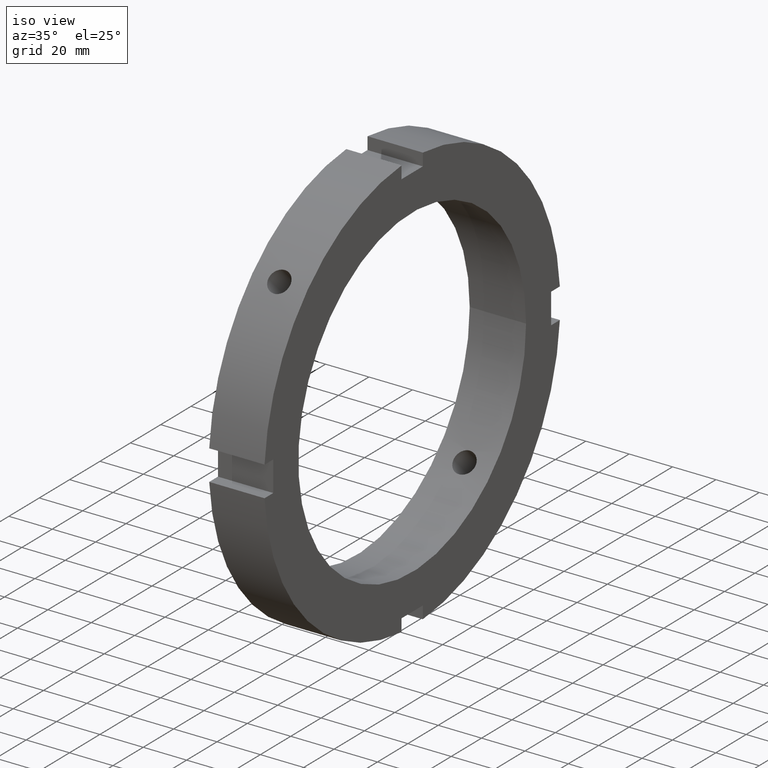
[diagram: clean part render]
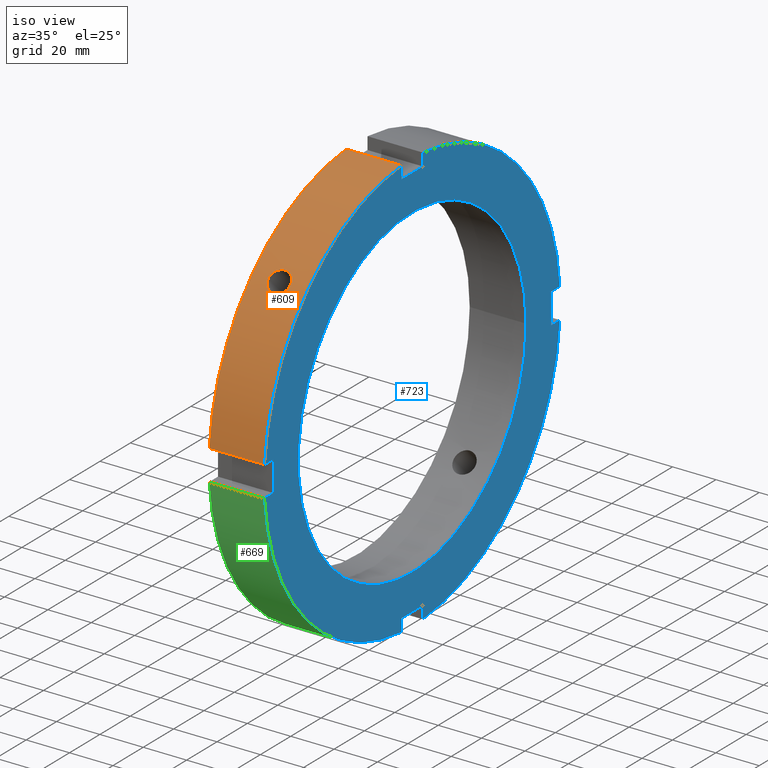
[diagram: same view with three faces highlighted in distinct colors, each labeled with its STEP entity id]
A machine part, iso view with three faces highlighted in distinct colors.
Their STEP definitions:

[orange] entity #609 — the highlighted cylindrical surface (partial cylindrical patch) has radius 97.5 mm, axis along (1, 0, 0).
#73=CARTESIAN_POINT('',(12.999999999999982,-72.423272696281785,65.277251565610555));
#74=VERTEX_POINT('',#73);
#75=CARTESIAN_POINT('',(12.999999999999980,-72.423272696281785,65.277251565610555));
#76=CARTESIAN_POINT('',(12.365412027941963,-72.423272696281785,65.277251565610555));
#77=CARTESIAN_POINT('',(11.688603400953237,-72.338417222234256,65.371783182393017));
#78=CARTESIAN_POINT('',(10.443682262266378,-71.991233554627982,65.753927136479959));
#79=CARTESIAN_POINT('',(9.875560113950325,-71.728658046856197,66.041283308527085));
#80=CARTESIAN_POINT('',(8.978418864771813,-71.117546471856031,66.698921055479516));
#81=CARTESIAN_POINT('',(8.589558362758387,-70.728206481584252,67.113027182846878));
#82=CARTESIAN_POINT('',(8.073845785067270,-69.865377724148303,68.010783006866120));
#83=CARTESIAN_POINT('',(7.946999999999983,-69.391632514559831,68.494189816816942));
#84=CARTESIAN_POINT('',(7.946999999999983,-68.494189816816927,69.391632514559831));
#85=CARTESIAN_POINT('',(8.073845785067263,-68.010783006866106,69.865377724148317));
#86=CARTESIAN_POINT('',(8.589558362758380,-67.113027182846878,70.728206481584280));
#87=CARTESIAN_POINT('',(8.978418864771809,-66.698921055479516,71.117546471856045));
#88=CARTESIAN_POINT('',(9.875560113950325,-66.041283308527071,71.728658046856197));
#89=CARTESIAN_POINT('',(10.443682262266375,-65.753927136479945,71.991233554627996));
#90=CARTESIAN_POINT('',(11.688603400953232,-65.371783182393003,72.338417222234270));
#91=CARTESIAN_POINT('',(12.365412027941964,-65.277251565610555,72.423272696281785));
#92=CARTESIAN_POINT('',(13.634587972058000,-65.277251565610555,72.423272696281785));
#93=CARTESIAN_POINT('',(14.311396599046732,-65.371783182393003,72.338417222234270));
#94=CARTESIAN_POINT('',(15.556317737733591,-65.753927136479945,71.991233554627996));
#95=CARTESIAN_POINT('',(16.124439886049640,-66.041283308527085,71.728658046856197));
#96=CARTESIAN_POINT('',(17.021581135228153,-66.698921055479502,71.117546471856045));
#97=CARTESIAN_POINT('',(17.410441637241579,-67.113027182846878,70.728206481584280));
#98=CARTESIAN_POINT('',(17.926154214932701,-68.010783006866106,69.865377724148317));
#99=CARTESIAN_POINT('',(18.052999999999983,-68.494189816816927,69.391632514559831));
#100=CARTESIAN_POINT('',(18.052999999999983,-69.391632514559831,68.494189816816942));
#101=CARTESIAN_POINT('',(17.926154214932698,-69.865377724148303,68.010783006866120));
#102=CARTESIAN_POINT('',(17.410441637241579,-70.728206481584266,67.113027182846892));
#103=CARTESIAN_POINT('',(17.021581135228153,-71.117546471856031,66.698921055479531));
#104=CARTESIAN_POINT('',(16.124439886049643,-71.728658046856197,66.041283308527085));
#105=CARTESIAN_POINT('',(15.556317737733590,-71.991233554627982,65.753927136479959));
#106=CARTESIAN_POINT('',(14.311396599046729,-72.338417222234256,65.371783182393017));
#107=CARTESIAN_POINT('',(13.634587972058004,-72.423272696281785,65.277251565610555));
#108=CARTESIAN_POINT('',(12.999999999999986,-72.423272696281785,65.277251565610555));
#109=B_SPLINE_CURVE_WITH_KNOTS('',3,(#75,#76,#77,#78,#79,#80,#81,#82,#83,#84,#85,#86,#87,#88,#89,#90,#91,#92,#93,#94,#95,#96,#97,#98,#99,#100,#101,#102,#103,#104,#105,#106,#107,#108),.UNSPECIFIED.,.T.,.U.,(4,2,2,2,2,2,2,2,2,2,2,2,2,2,2,2,4),(0.0,0.190376391617405,0.380752783234810,0.571129128424916,0.761505473615021,0.951881818805126,1.142258163995232,1.332634555612637,1.523010947230042,1.713387338847447,1.903763730464853,2.094140075654958,2.284516420845063,2.474892766035168,2.665269111225274,2.855645502842679,3.046021894460084),.UNSPECIFIED.);
#110=EDGE_CURVE('',#74,#74,#109,.T.);
#353=CARTESIAN_POINT('',(0.499999999999972,-97.248393302923006,7.000000000000006));
#354=VERTEX_POINT('',#353);
#369=CARTESIAN_POINT('',(25.999999999999979,-97.248393302923006,7.000000000000006));
#370=VERTEX_POINT('',#369);
#377=CARTESIAN_POINT('',(0.499999999999972,-97.248393302923006,7.000000000000007));
#378=DIRECTION('',(1.0,0.0,0.0));
#379=VECTOR('',#378,25.500000000000007);
#380=LINE('',#377,#379);
#381=EDGE_CURVE('',#354,#370,#380,.T.);
#493=CARTESIAN_POINT('',(0.499999999999972,-6.999999999999989,97.248393302923006));
#494=VERTEX_POINT('',#493);
#503=CARTESIAN_POINT('',(25.999999999999979,-6.999999999999989,97.248393302923006));
#504=VERTEX_POINT('',#503);
#505=CARTESIAN_POINT('',(25.999999999999979,-6.999999999999991,97.248393302923006));
#506=DIRECTION('',(-1.0,0.0,0.0));
#507=VECTOR('',#506,25.500000000000007);
#508=LINE('',#505,#507);
#509=EDGE_CURVE('',#504,#494,#508,.T.);
#583=CARTESIAN_POINT('',(13.249999999999975,0.0,0.0));
#584=DIRECTION('',(1.0,0.0,0.0));
#585=DIRECTION('',(0.0,1.0,0.0));
#586=AXIS2_PLACEMENT_3D('',#583,#584,#585);
#587=CYLINDRICAL_SURFACE('',#586,97.500000000000000);
#588=ORIENTED_EDGE('',*,*,#381,.T.);
#589=CARTESIAN_POINT('',(25.999999999999979,0.0,0.0));
#590=DIRECTION('',(1.0,0.0,0.0));
#591=DIRECTION('',(0.0,1.0,0.0));
#592=AXIS2_PLACEMENT_3D('',#589,#590,#591);
#593=CIRCLE('',#592,97.500000000000000);
#594=EDGE_CURVE('',#504,#370,#593,.T.);
#595=ORIENTED_EDGE('',*,*,#594,.F.);
#596=ORIENTED_EDGE('',*,*,#509,.T.);
#597=CARTESIAN_POINT('',(0.499999999999972,0.0,0.0));
#598=DIRECTION('',(1.0,0.0,0.0));
#599=DIRECTION('',(0.0,1.0,0.0));
#600=AXIS2_PLACEMENT_3D('',#597,#598,#599);
#601=CIRCLE('',#600,97.500000000000000);
#602=EDGE_CURVE('',#494,#354,#601,.T.);
#603=ORIENTED_EDGE('',*,*,#602,.T.);
#604=EDGE_LOOP('',(#588,#595,#596,#603));
#605=FACE_OUTER_BOUND('',#604,.T.);
#606=ORIENTED_EDGE('',*,*,#110,.T.);
#607=EDGE_LOOP('',(#606));
#608=FACE_BOUND('',#607,.T.);
#609=ADVANCED_FACE('',(#605,#608),#587,.T.);

[blue] entity #723 — the highlighted planar face has unit normal (1, 0, 0).
#259=CARTESIAN_POINT('',(25.999999999999979,-7.000000000000012,-91.500000000000000));
#260=VERTEX_POINT('',#259);
#267=CARTESIAN_POINT('',(25.999999999999979,-7.000000000000012,-97.248393302923006));
#268=VERTEX_POINT('',#267);
#269=CARTESIAN_POINT('',(25.999999999999979,-7.000000000000012,-97.248393302923006));
#270=DIRECTION('',(0.0,0.0,1.0));
#271=VECTOR('',#270,5.748393302923006);
#272=LINE('',#269,#271);
#273=EDGE_CURVE('',#268,#260,#272,.T.);
#299=CARTESIAN_POINT('',(25.999999999999979,6.999999999999977,-97.248393302923006));
#300=VERTEX_POINT('',#299);
#307=CARTESIAN_POINT('',(25.999999999999979,6.999999999999979,-91.500000000000000));
#308=VERTEX_POINT('',#307);
#309=CARTESIAN_POINT('',(25.999999999999979,6.999999999999976,-91.500000000000000));
#310=DIRECTION('',(0.0,0.0,-1.0));
#311=VECTOR('',#310,5.748393302923006);
#312=LINE('',#309,#311);
#313=EDGE_CURVE('',#308,#300,#312,.T.);
#336=CARTESIAN_POINT('',(25.999999999999979,-7.000000000000007,-91.500000000000014));
#337=DIRECTION('',(0.0,1.0,0.0));
#338=VECTOR('',#337,13.999999999999986);
#339=LINE('',#336,#338);
#340=EDGE_CURVE('',#260,#308,#339,.T.);
#361=CARTESIAN_POINT('',(25.999999999999979,-91.500000000000000,7.000000000000006));
#362=VERTEX_POINT('',#361);
#369=CARTESIAN_POINT('',(25.999999999999979,-97.248393302923006,7.000000000000006));
#370=VERTEX_POINT('',#369);
#371=CARTESIAN_POINT('',(25.999999999999979,-97.248393302923020,7.000000000000006));
#372=DIRECTION('',(0.0,1.0,0.0));
#373=VECTOR('',#372,5.748393302923006);
#374=LINE('',#371,#373);
#375=EDGE_CURVE('',#370,#362,#374,.T.);
#401=CARTESIAN_POINT('',(25.999999999999979,-97.248393302923006,-6.999999999999984));
#402=VERTEX_POINT('',#401);
#409=CARTESIAN_POINT('',(25.999999999999979,-91.500000000000000,-6.999999999999984));
#410=VERTEX_POINT('',#409);
#411=CARTESIAN_POINT('',(25.999999999999979,-91.500000000000000,-6.999999999999984));
#412=DIRECTION('',(0.0,-1.0,0.0));
#413=VECTOR('',#412,5.748393302923006);
#414=LINE('',#411,#413);
#415=EDGE_CURVE('',#410,#402,#414,.T.);
#438=CARTESIAN_POINT('',(25.999999999999979,-91.499999999999986,7.000000000000007));
#439=DIRECTION('',(0.0,0.0,-1.0));
#440=VECTOR('',#439,13.999999999999991);
#441=LINE('',#438,#440);
#442=EDGE_CURVE('',#362,#410,#441,.T.);
#463=CARTESIAN_POINT('',(25.999999999999979,7.000000000000001,91.500000000000000));
#464=VERTEX_POINT('',#463);
#471=CARTESIAN_POINT('',(25.999999999999979,7.000000000000001,97.248393302923006));
#472=VERTEX_POINT('',#471);
#473=CARTESIAN_POINT('',(25.999999999999979,6.999999999999996,97.248393302923006));
#474=DIRECTION('',(0.0,0.0,-1.0));
#475=VECTOR('',#474,5.748393302923006);
#476=LINE('',#473,#475);
#477=EDGE_CURVE('',#472,#464,#476,.T.);
#503=CARTESIAN_POINT('',(25.999999999999979,-6.999999999999989,97.248393302923006));
#504=VERTEX_POINT('',#503);
#511=CARTESIAN_POINT('',(25.999999999999979,-6.999999999999989,91.500000000000000));
#512=VERTEX_POINT('',#511);
#513=CARTESIAN_POINT('',(25.999999999999979,-6.999999999999990,91.500000000000000));
#514=DIRECTION('',(0.0,0.0,1.0));
#515=VECTOR('',#514,5.748393302923006);
#516=LINE('',#513,#515);
#517=EDGE_CURVE('',#512,#504,#516,.T.);
#540=CARTESIAN_POINT('',(25.999999999999979,7.0,91.500000000000000));
#541=DIRECTION('',(0.0,-1.0,0.0));
#542=VECTOR('',#541,13.999999999999993);
#543=LINE('',#540,#542);
#544=EDGE_CURVE('',#464,#512,#543,.T.);
#556=CARTESIAN_POINT('',(25.999999999999979,97.248393302923006,6.999999999999995));
#557=VERTEX_POINT('',#556);
#558=CARTESIAN_POINT('',(25.999999999999979,0.0,0.0));
#559=DIRECTION('',(1.0,0.0,0.0));
#560=DIRECTION('',(0.0,1.0,0.0));
#561=AXIS2_PLACEMENT_3D('',#558,#559,#560);
#562=CIRCLE('',#561,97.500000000000000);
#563=EDGE_CURVE('',#557,#472,#562,.T.);
#589=CARTESIAN_POINT('',(25.999999999999979,0.0,0.0));
#590=DIRECTION('',(1.0,0.0,0.0));
#591=DIRECTION('',(0.0,1.0,0.0));
#592=AXIS2_PLACEMENT_3D('',#589,#590,#591);
#593=CIRCLE('',#592,97.500000000000000);
#594=EDGE_CURVE('',#504,#370,#593,.T.);
#625=CARTESIAN_POINT('',(25.999999999999979,97.248393302923006,-6.999999999999995));
#626=VERTEX_POINT('',#625);
#633=CARTESIAN_POINT('',(25.999999999999979,0.0,0.0));
#634=DIRECTION('',(1.0,0.0,0.0));
#635=DIRECTION('',(0.0,1.0,0.0));
#636=AXIS2_PLACEMENT_3D('',#633,#634,#635);
#637=CIRCLE('',#636,97.500000000000000);
#638=EDGE_CURVE('',#300,#626,#637,.T.);
#652=CARTESIAN_POINT('',(25.999999999999979,0.0,0.0));
#653=DIRECTION('',(1.0,0.0,0.0));
#654=DIRECTION('',(0.0,1.0,0.0));
#655=AXIS2_PLACEMENT_3D('',#652,#653,#654);
#656=CIRCLE('',#655,97.500000000000000);
#657=EDGE_CURVE('',#402,#268,#656,.T.);
#670=CARTESIAN_POINT('',(25.999999999999979,86.250000000000000,0.0));
#671=DIRECTION('',(1.0,0.0,0.0));
#672=DIRECTION('',(0.0,0.0,-1.0));
#673=AXIS2_PLACEMENT_3D('',#670,#671,#672);
#674=PLANE('',#673);
#675=ORIENTED_EDGE('',*,*,#273,.T.);
#676=ORIENTED_EDGE('',*,*,#340,.T.);
#677=ORIENTED_EDGE('',*,*,#313,.T.);
#678=ORIENTED_EDGE('',*,*,#638,.T.);
#679=CARTESIAN_POINT('',(25.999999999999979,91.500000000000000,-6.999999999999995));
#680=VERTEX_POINT('',#679);
#681=CARTESIAN_POINT('',(25.999999999999979,97.248393302923020,-6.999999999999995));
#682=DIRECTION('',(0.0,-1.0,0.0));
#683=VECTOR('',#682,5.748393302923006);
#684=LINE('',#681,#683);
#685=EDGE_CURVE('',#626,#680,#684,.T.);
#686=ORIENTED_EDGE('',*,*,#685,.T.);
#687=CARTESIAN_POINT('',(25.999999999999979,91.500000000000000,6.999999999999995));
#688=VERTEX_POINT('',#687);
#689=CARTESIAN_POINT('',(25.999999999999979,91.499999999999986,-6.999999999999996));
#690=DIRECTION('',(0.0,0.0,1.0));
#691=VECTOR('',#690,13.999999999999989);
#692=LINE('',#689,#691);
#693=EDGE_CURVE('',#680,#688,#692,.T.);
#694=ORIENTED_EDGE('',*,*,#693,.T.);
#695=CARTESIAN_POINT('',(25.999999999999979,91.500000000000000,6.999999999999995));
#696=DIRECTION('',(0.0,1.0,0.0));
#697=VECTOR('',#696,5.748393302923006);
#698=LINE('',#695,#697);
#699=EDGE_CURVE('',#688,#557,#698,.T.);
#700=ORIENTED_EDGE('',*,*,#699,.T.);
#701=ORIENTED_EDGE('',*,*,#563,.T.);
#702=ORIENTED_EDGE('',*,*,#477,.T.);
#703=ORIENTED_EDGE('',*,*,#544,.T.);
#704=ORIENTED_EDGE('',*,*,#517,.T.);
#705=ORIENTED_EDGE('',*,*,#594,.T.);
#706=ORIENTED_EDGE('',*,*,#375,.T.);
#707=ORIENTED_EDGE('',*,*,#442,.T.);
#708=ORIENTED_EDGE('',*,*,#415,.T.);
#709=ORIENTED_EDGE('',*,*,#657,.T.);
#710=EDGE_LOOP('',(#675,#676,#677,#678,#686,#694,#700,#701,#702,#703,#704,#705,#706,#707,#708,#709));
#711=FACE_OUTER_BOUND('',#710,.T.);
#712=CARTESIAN_POINT('',(25.999999999999982,75.0,0.0));
#713=VERTEX_POINT('',#712);
#714=CARTESIAN_POINT('',(25.999999999999982,0.0,0.0));
#715=DIRECTION('',(1.0,0.0,0.0));
#716=DIRECTION('',(0.0,1.0,0.0));
#717=AXIS2_PLACEMENT_3D('',#714,#715,#716);
#718=CIRCLE('',#717,75.0);
#719=EDGE_CURVE('',#713,#713,#718,.T.);
#720=ORIENTED_EDGE('',*,*,#719,.F.);
#721=EDGE_LOOP('',(#720));
#722=FACE_BOUND('',#721,.T.);
#723=ADVANCED_FACE('',(#711,#722),#674,.T.);

[green] entity #669 — the highlighted cylindrical surface (partial cylindrical patch) has radius 97.5 mm, axis along (1, 0, 0).
#251=CARTESIAN_POINT('',(0.499999999999972,-7.000000000000012,-97.248393302923006));
#252=VERTEX_POINT('',#251);
#267=CARTESIAN_POINT('',(25.999999999999979,-7.000000000000012,-97.248393302923006));
#268=VERTEX_POINT('',#267);
#275=CARTESIAN_POINT('',(0.499999999999972,-7.000000000000012,-97.248393302923006));
#276=DIRECTION('',(1.0,0.0,0.0));
#277=VECTOR('',#276,25.500000000000007);
#278=LINE('',#275,#277);
#279=EDGE_CURVE('',#252,#268,#278,.T.);
#391=CARTESIAN_POINT('',(0.499999999999972,-97.248393302923006,-6.999999999999984));
#392=VERTEX_POINT('',#391);
#401=CARTESIAN_POINT('',(25.999999999999979,-97.248393302923006,-6.999999999999984));
#402=VERTEX_POINT('',#401);
#403=CARTESIAN_POINT('',(25.999999999999979,-97.248393302923006,-6.999999999999984));
#404=DIRECTION('',(-1.0,0.0,0.0));
#405=VECTOR('',#404,25.500000000000007);
#406=LINE('',#403,#405);
#407=EDGE_CURVE('',#402,#392,#406,.T.);
#646=CARTESIAN_POINT('',(13.249999999999975,0.0,0.0));
#647=DIRECTION('',(1.0,0.0,0.0));
#648=DIRECTION('',(0.0,1.0,0.0));
#649=AXIS2_PLACEMENT_3D('',#646,#647,#648);
#650=CYLINDRICAL_SURFACE('',#649,97.500000000000000);
#651=ORIENTED_EDGE('',*,*,#279,.T.);
#652=CARTESIAN_POINT('',(25.999999999999979,0.0,0.0));
#653=DIRECTION('',(1.0,0.0,0.0));
#654=DIRECTION('',(0.0,1.0,0.0));
#655=AXIS2_PLACEMENT_3D('',#652,#653,#654);
#656=CIRCLE('',#655,97.500000000000000);
#657=EDGE_CURVE('',#402,#268,#656,.T.);
#658=ORIENTED_EDGE('',*,*,#657,.F.);
#659=ORIENTED_EDGE('',*,*,#407,.T.);
#660=CARTESIAN_POINT('',(0.499999999999972,0.0,0.0));
#661=DIRECTION('',(1.0,0.0,0.0));
#662=DIRECTION('',(0.0,1.0,0.0));
#663=AXIS2_PLACEMENT_3D('',#660,#661,#662);
#664=CIRCLE('',#663,97.500000000000000);
#665=EDGE_CURVE('',#392,#252,#664,.T.);
#666=ORIENTED_EDGE('',*,*,#665,.T.);
#667=EDGE_LOOP('',(#651,#658,#659,#666));
#668=FACE_OUTER_BOUND('',#667,.T.);
#669=ADVANCED_FACE('',(#668),#650,.T.);